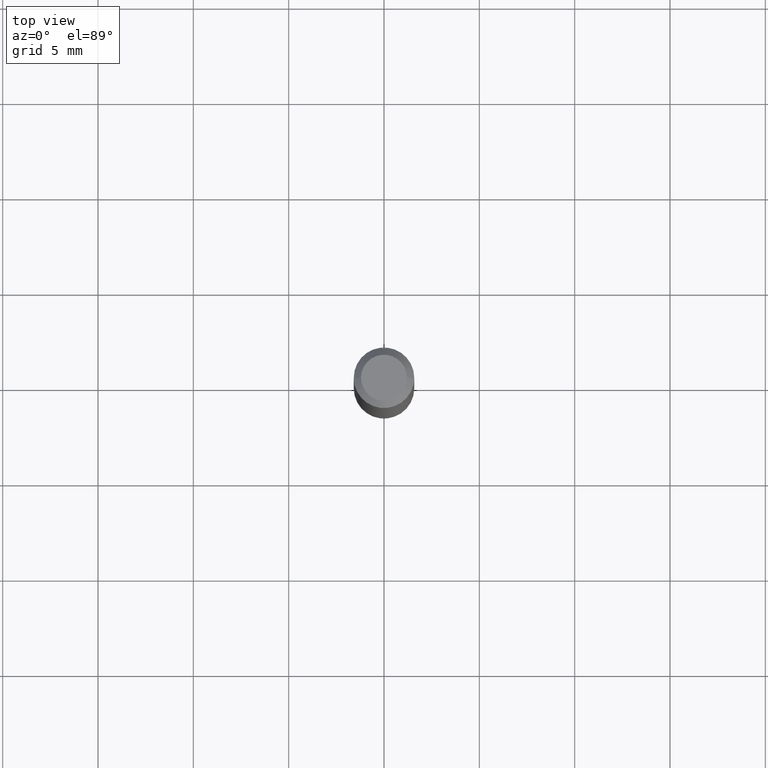
[diagram: clean part render]
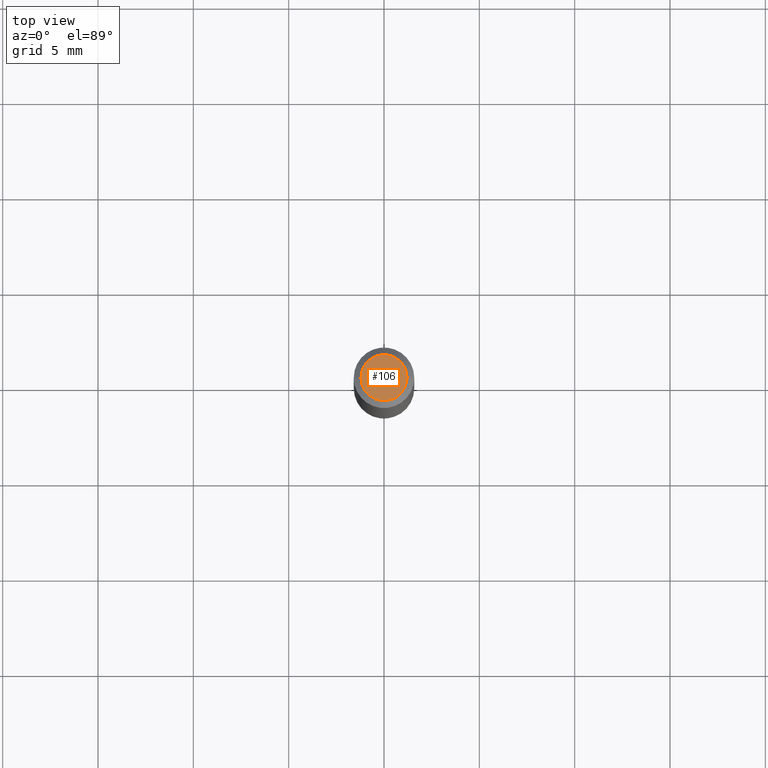
[diagram: same view with one face highlighted and labeled with its STEP entity id]
A machine part, top view. The second image highlights one B-rep face of the part: STEP entity #106.
In plain terms, the highlighted planar face has unit normal (0, -0, -1).
Its self-contained STEP definition (entity closure, byte-faithful):
#2 = ORIENTED_EDGE ( 'NONE', *, *, #102, .T. ) ;
#19 = DIRECTION ( 'NONE',  ( 1.000000000000000000, -6.982962677686267499E-15, 5.108144071313017768E-29 ) ) ;
#25 = CIRCLE ( 'NONE', #247, 0.04749999999999999362 ) ;
#39 = CARTESIAN_POINT ( 'NONE',  ( -8.783475466943041190E-44, 1.254047510459085029E-29, 3.591734821858152800E-15 ) ) ;
#67 = CARTESIAN_POINT ( 'NONE',  ( -0.04749999999999999362, 3.578768372314273615E-16, 3.591734821858150433E-15 ) ) ;
#96 = FACE_OUTER_BOUND ( 'NONE', #428, .T. ) ;
#102 = EDGE_CURVE ( 'NONE', #298, #403, #459, .T. ) ;
#103 = CARTESIAN_POINT ( 'NONE',  ( 3.316907271900976096E-16, 0.04749999999999999362, 1.630022047334026855E-15 ) ) ;
#106 = ADVANCED_FACE ( 'NONE', ( #96 ), #202, .F. ) ;
#137 = DIRECTION ( 'NONE',  ( 2.438088387897960049E-29, -3.491481338843145188E-15, -1.000000000000000000 ) ) ;
#179 = DIRECTION ( 'NONE',  ( -2.445468806185136597E-29, 3.491481338843145583E-15, 1.000000000000000000 ) ) ;
#202 = PLANE ( 'NONE',  #254 ) ;
#204 = DIRECTION ( 'NONE',  ( -2.445468806185136597E-29, 3.491481338843145583E-15, 1.000000000000000000 ) ) ;
#239 = DIRECTION ( 'NONE',  ( -1.000000000000000000, 6.982962677686265922E-15, -4.876176775795935793E-29 ) ) ;
#247 = AXIS2_PLACEMENT_3D ( 'NONE', #39, #179, #278 ) ;
#254 = AXIS2_PLACEMENT_3D ( 'NONE', #103, #137, #239 ) ;
#255 = EDGE_CURVE ( 'NONE', #403, #298, #25, .T. ) ;
#278 = DIRECTION ( 'NONE',  ( 1.000000000000000000, -6.982962677686267499E-15, 5.108144071313017768E-29 ) ) ;
#298 = VERTEX_POINT ( 'NONE', #67 ) ;
#345 = CARTESIAN_POINT ( 'NONE',  ( -8.783475466943041190E-44, 1.254047510459085029E-29, 3.591734821858152800E-15 ) ) ;
#393 = CARTESIAN_POINT ( 'NONE',  ( 0.04749999999999999362, -4.035134999187516007E-16, 3.591734821858155166E-15 ) ) ;
#403 = VERTEX_POINT ( 'NONE', #393 ) ;
#417 = ORIENTED_EDGE ( 'NONE', *, *, #255, .T. ) ;
#428 = EDGE_LOOP ( 'NONE', ( #2, #417 ) ) ;
#437 = AXIS2_PLACEMENT_3D ( 'NONE', #345, #204, #19 ) ;
#459 = CIRCLE ( 'NONE', #437, 0.04749999999999999362 ) ;